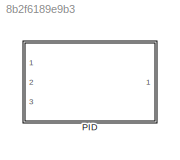
MODEL slx_8b2f6189e9b3
KIND library
CONFIG AbsTol = auto
CONFIG EnableMultiTasking = off
CONFIG FixedStep = auto
CONFIG MaxStep = auto
CONFIG MinStep = auto
CONFIG RelTol = 1e-3
CONFIG SampleTimeConstraint = Unconstrained
CONFIG Solver = VariableStepAuto
CONFIG SolverName = VariableStepAuto
CONFIG StartTime = 0.0
CONFIG StopTime = 10.0
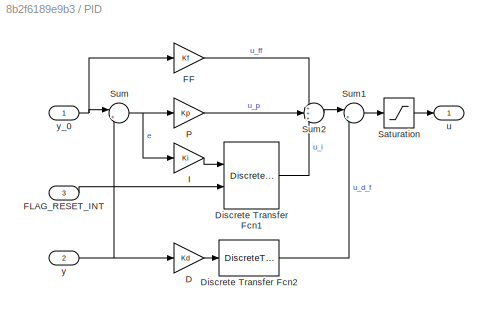
BLOCK [SubSystem] PID
  Ports = [3, 1]
  RequestExecContextInheritance = off
  Variant = off
BLOCK [Gain] PID/D
  Gain = Kd
  Multiplication = Matrix(K*u)
  OutDataTypeStr = Inherit: Inherit via internal rule
  ParamDataTypeStr = Inherit: Inherit via internal rule
  SaturateOnIntegerOverflow = off
BLOCK [DiscreteTransferFcn] PID/Discrete Transfer Fcn1
  Denominator = [1, -1]
  ExternalReset = Level hold
  InputPortMap = u0,r7
  Numerator = [ts]
  Ports = [2, 1]
  SampleTime = ts
BLOCK [DiscreteTransferFcn] PID/Discrete Transfer Fcn2
  Denominator = [(1/N + ts), -1/N]
  InputPortMap = u0
  Numerator = [1, -1]
  Ports = [1, 1]
  SampleTime = ts
BLOCK [Gain] PID/FF
  Gain = Kf
  Multiplication = Matrix(K*u)
  OutDataTypeStr = Inherit: Inherit via internal rule
  ParamDataTypeStr = Inherit: Inherit via internal rule
  SaturateOnIntegerOverflow = off
BLOCK [Inport] PID/FLAG_RESET_INT
  IconDisplay = Port number
  Port = 3
BLOCK [Gain] PID/I
  Gain = Ki
  Multiplication = Matrix(K*u)
  OutDataTypeStr = Inherit: Inherit via internal rule
  ParamDataTypeStr = Inherit: Inherit via internal rule
  SaturateOnIntegerOverflow = off
BLOCK [Gain] PID/P
  Gain = Kp
  Multiplication = Matrix(K*u)
  OutDataTypeStr = Inherit: Inherit via internal rule
  ParamDataTypeStr = Inherit: Inherit via internal rule
  SaturateOnIntegerOverflow = off
BLOCK [Saturate] PID/Saturation
  InputPortMap = u0
  LowerLimit = min_u
  Ports = [1, 1]
  UpperLimit = max_u
BLOCK [Sum] PID/Sum
  IconShape = round
  InputSameDT = off
  Inputs = |+-
  OutDataTypeStr = Inherit: Inherit via internal rule
  Ports = [2, 1]
  SaturateOnIntegerOverflow = off
BLOCK [Sum] PID/Sum1
  IconShape = round
  InputSameDT = off
  Inputs = |+-
  OutDataTypeStr = Inherit: Inherit via internal rule
  Ports = [2, 1]
  SaturateOnIntegerOverflow = off
BLOCK [Sum] PID/Sum2
  IconShape = round
  InputSameDT = off
  Inputs = +++
  OutDataTypeStr = Inherit: Inherit via internal rule
  Ports = [3, 1]
  SaturateOnIntegerOverflow = off
BLOCK [Outport] PID/u
  IconDisplay = Port number
BLOCK [Inport] PID/y
  IconDisplay = Port number
  Port = 2
BLOCK [Inport] PID/y_0
  IconDisplay = Port number
LINE PID/D:1 -> PID/Discrete Transfer Fcn2:1
LINE PID/Discrete Transfer Fcn1:1 -> PID/Sum2:3
LINE PID/Discrete Transfer Fcn2:1 -> PID/Sum1:2
LINE PID/FF:1 -> PID/Sum2:1
LINE PID/FLAG_RESET_INT:1 -> PID/Discrete Transfer Fcn1:2
LINE PID/I:1 -> PID/Discrete Transfer Fcn1:1
LINE PID/P:1 -> PID/Sum2:2
LINE PID/Saturation:1 -> PID/u:1
LINE PID/Sum1:1 -> PID/Saturation:1
LINE PID/Sum2:1 -> PID/Sum1:1
NET PID/Sum:1 -> PID/I:1, PID/P:1
NET PID/y:1 -> PID/D:1, PID/Sum:2
NET PID/y_0:1 -> PID/FF:1, PID/Sum:1
note: NET lines group one-source signal fan-out (src -> all destinations, sorted); 1:1 wires keep LINE
